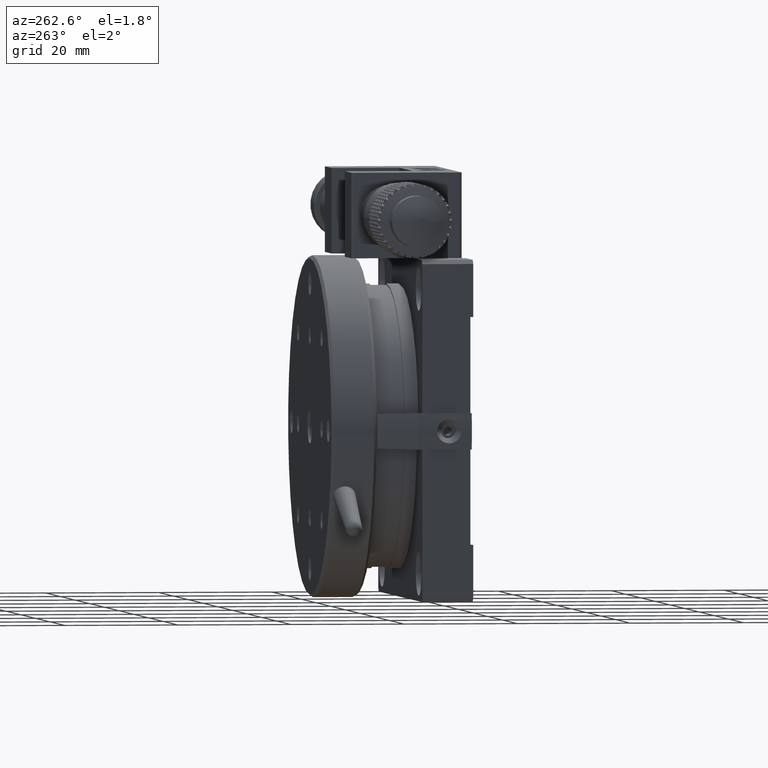
[diagram: clean part render]
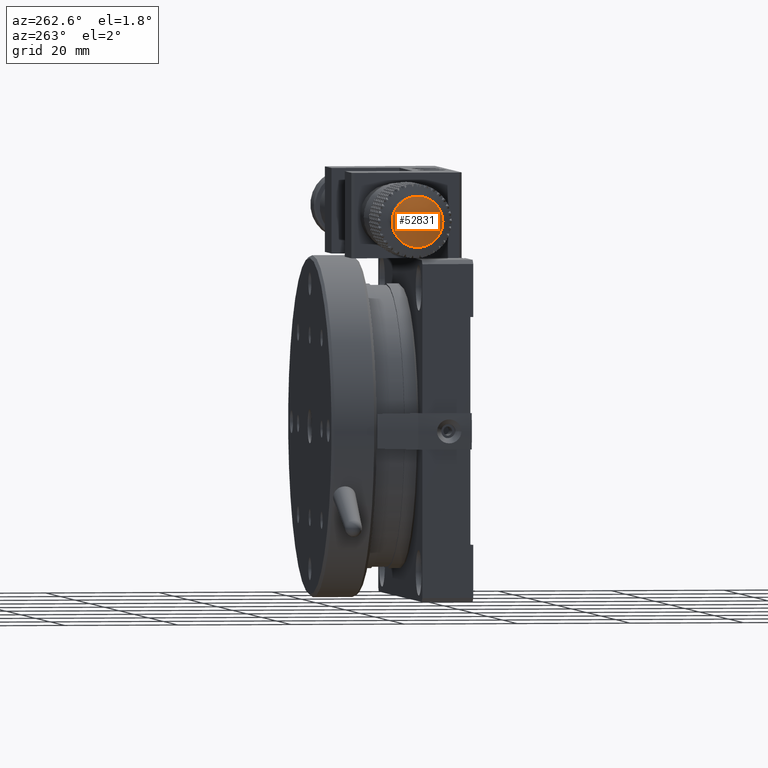
[diagram: same view with one face highlighted and labeled with its STEP entity id]
A machine part, auxiliary view. The second image highlights one B-rep face of the part: STEP entity #52831.
In plain terms, the highlighted face is a freeform B-spline surface patch.
Its self-contained STEP definition (entity closure, byte-faithful):
#521 = CARTESIAN_POINT ( 'NONE',  ( -25.25699999999084255, 12.99999999999999645, 7.499999999999999112 ) ) ;
#949 = CARTESIAN_POINT ( 'NONE',  ( -24.25199999999070499, 8.500000000000017764, 7.500000000000000000 ) ) ;
#1401 = CARTESIAN_POINT ( 'NONE',  ( -25.25699999999084255, 12.99999999999999645, 7.499999999999999112 ) ) ;
#6121 = CARTESIAN_POINT ( 'NONE',  ( -24.91902358158060338, 9.912826639587661859, 7.500000000000000888 ) ) ;
#6282 = AXIS2_PLACEMENT_3D ( 'NONE', #42654, #17750, #82510 ) ;
#12988 = CARTESIAN_POINT ( 'NONE',  ( -24.91902358158060338, 9.912826639587661859, 7.500000000000000888 ) ) ;
#14256 = CARTESIAN_POINT ( 'NONE',  ( -24.91902358158060338, 16.08717336041233636, 7.500000000000000888 ) ) ;
#14672 = CARTESIAN_POINT ( 'NONE',  ( -24.25199999999070499, 8.500000000000017764, 7.500000000000000000 ) ) ;
#16557 = ORIENTED_EDGE ( 'NONE', *, *, #24483, .F. ) ;
#17750 = DIRECTION ( 'NONE',  ( 1.000000000000000000, 6.072288236963999812E-17, 0.000000000000000000 ) ) ;
#20595 = VERTEX_POINT ( 'NONE', #21013 ) ;
#20672 = CARTESIAN_POINT ( 'NONE',  ( -24.25199999999070499, 17.49999999999997868, 16.49999999999995737 ) ) ;
#21013 = CARTESIAN_POINT ( 'NONE',  ( -24.25199999999075473, 17.49999999999999645, 7.500000000000000000 ) ) ;
#24483 = EDGE_CURVE ( 'NONE', #20595, #20595, #32315, .T. ) ;
#26273 = CARTESIAN_POINT ( 'NONE',  ( -24.25199999999070499, 17.49999999999997868, 7.500000000000000000 ) ) ;
#27125 = CARTESIAN_POINT ( 'NONE',  ( -25.25956350022793728, 11.43763224547098112, 7.500000000000000888 ) ) ;
#27550 = CARTESIAN_POINT ( 'NONE',  ( -24.91902358158060338, 9.912826639587656530, 13.67434672082468161 ) ) ;
#28047 = EDGE_LOOP ( 'NONE', ( #16557 ) ) ;
#32315 = CIRCLE ( 'NONE', #6282, 4.500000000000000888 ) ;
#33997 = CARTESIAN_POINT ( 'NONE',  ( -25.25956350022793728, 11.43763224547098112, 7.500000000000000888 ) ) ;
#35373 =( BOUNDED_SURFACE ( )  B_SPLINE_SURFACE ( 3, 3, ( 
 ( #14672, #78587, #71715, #26273, #20672, #59254, #949 ),
 ( #12988, #58418, #64861, #14256, #40428, #27550, #6121 ),
 ( #27125, #79011, #66541, #84597, #53272, #39143, #33997 ),
 ( #65276, #46435, #46867, #79441, #1401, #521, #53692 ) ),
 .UNSPECIFIED., .F., .T., .F. ) 
 B_SPLINE_SURFACE_WITH_KNOTS ( ( 4, 4 ),
 ( 4, 3, 4 ),
 ( 0.000000000000000000, 1.000000000000000000 ),
 ( 0.000000000000000000, 0.5000000000000000000, 1.000000000000000000 ),
 .UNSPECIFIED. ) 
 GEOMETRIC_REPRESENTATION_ITEM ( )  RATIONAL_B_SPLINE_SURFACE ( (
 ( 1.000000000000000000, 0.3333333333333333148, 0.3333333333333333148, 1.000000000000000000, 0.3333333333333333148, 0.3333333333333333148, 1.000000000000000000),
 ( 0.9837319552160512792, 0.3279106517386837227, 0.3279106517386837227, 0.9837319552160512792, 0.3279106517386837227, 0.3279106517386837227, 0.9837319552160512792),
 ( 0.9837319552160512792, 0.3279106517386837227, 0.3279106517386837227, 0.9837319552160512792, 0.3279106517386837227, 0.3279106517386837227, 0.9837319552160512792),
 ( 1.000000000000000000, 0.3333333333333333148, 0.3333333333333333148, 1.000000000000000000, 0.3333333333333333148, 0.3333333333333333148, 1.000000000000000000) ) ) 
 REPRESENTATION_ITEM ( '' )  SURFACE ( )  );
#39143 = CARTESIAN_POINT ( 'NONE',  ( -25.25956350022792662, 11.43763224547097579, 10.62473550905804309 ) ) ;
#40428 = CARTESIAN_POINT ( 'NONE',  ( -24.91902358158060338, 16.08717336041233992, 13.67434672082468161 ) ) ;
#42654 = CARTESIAN_POINT ( 'NONE',  ( -24.25199999999075473, 12.99999999999999467, 7.500000000000000000 ) ) ;
#46435 = CARTESIAN_POINT ( 'NONE',  ( -25.25699999999084255, 12.99999999999999645, 7.499999999999999112 ) ) ;
#46867 = CARTESIAN_POINT ( 'NONE',  ( -25.25699999999084255, 12.99999999999999645, 7.499999999999999112 ) ) ;
#47273 = FACE_OUTER_BOUND ( 'NONE', #28047, .T. ) ;
#52831 = ADVANCED_FACE ( 'NONE', ( #47273 ), #35373, .T. ) ;
#53272 = CARTESIAN_POINT ( 'NONE',  ( -25.25956350022792662, 14.56236775452901888, 10.62473550905804309 ) ) ;
#53692 = CARTESIAN_POINT ( 'NONE',  ( -25.25699999999083900, 12.99999999999999822, 7.500000000000000000 ) ) ;
#58418 = CARTESIAN_POINT ( 'NONE',  ( -24.91902358158060338, 9.912826639587656530, 1.325653279175317945 ) ) ;
#59254 = CARTESIAN_POINT ( 'NONE',  ( -24.25199999999070144, 8.500000000000017764, 16.49999999999995737 ) ) ;
#64861 = CARTESIAN_POINT ( 'NONE',  ( -24.91902358158060338, 16.08717336041233992, 1.325653279175317945 ) ) ;
#65276 = CARTESIAN_POINT ( 'NONE',  ( -25.25699999999083900, 12.99999999999999822, 7.500000000000000000 ) ) ;
#66541 = CARTESIAN_POINT ( 'NONE',  ( -25.25956350022792662, 14.56236775452901888, 4.375264490941957796 ) ) ;
#71715 = CARTESIAN_POINT ( 'NONE',  ( -24.25199999999070499, 17.49999999999997868, -1.499999999999959810 ) ) ;
#78587 = CARTESIAN_POINT ( 'NONE',  ( -24.25199999999070499, 8.500000000000017764, -1.499999999999959810 ) ) ;
#79011 = CARTESIAN_POINT ( 'NONE',  ( -25.25956350022792662, 11.43763224547097579, 4.375264490941957796 ) ) ;
#79441 = CARTESIAN_POINT ( 'NONE',  ( -25.25699999999083900, 12.99999999999999822, 7.500000000000000000 ) ) ;
#82510 = DIRECTION ( 'NONE',  ( 0.000000000000000000, 1.000000000000000000, 0.000000000000000000 ) ) ;
#84597 = CARTESIAN_POINT ( 'NONE',  ( -25.25956350022793728, 14.56236775452902243, 7.500000000000000888 ) ) ;